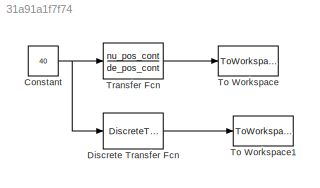
MODEL slx_31a91a1f7f74
KIND model
CONFIG AbsTol = auto
CONFIG FixedStep = 0.02
CONFIG MaxStep = auto
CONFIG MinStep = auto
CONFIG RelTol = 1e-3
CONFIG SampleTimeConstraint = Unconstrained
CONFIG Solver = ode4
CONFIG SolverMode = Auto
CONFIG SolverName = ode4
CONFIG StartTime = 0.0
CONFIG StopTime = 1.98
BLOCK [Constant] Constant
  Value = 40
BLOCK [DiscreteTransferFcn] Discrete Transfer Fcn
  Denominator = de_pos_disc
  InputPortMap = u0
  Numerator = nu_pos_disc
  Ports = [1, 1]
  SampleTime = 0.02
BLOCK [ToWorkspace] To Workspace
  FixptAsFi = on
  MaxDataPoints = inf
  Ports = [1]
  SampleTime = -1
  Save2DSignal = 3-D array (concatenate along third dimension)
  VariableName = simu_pos_cont
BLOCK [ToWorkspace] To Workspace1
  FixptAsFi = on
  MaxDataPoints = inf
  Ports = [1]
  SampleTime = -1
  Save2DSignal = 3-D array (concatenate along third dimension)
  VariableName = simu_pos_disc
BLOCK [TransferFcn] Transfer Fcn
  Denominator = de_pos_cont
  Numerator = nu_pos_cont
NET Constant:1 -> Discrete Transfer Fcn:1, Transfer Fcn:1
LINE Discrete Transfer Fcn:1 -> To Workspace1:1
LINE Transfer Fcn:1 -> To Workspace:1
note: NET lines group one-source signal fan-out (src -> all destinations, sorted); 1:1 wires keep LINE
